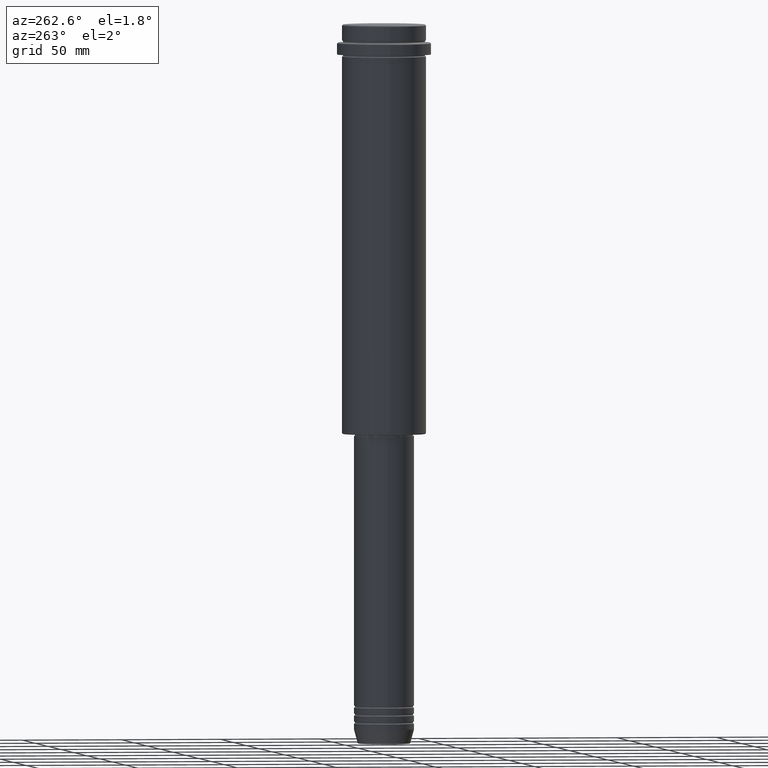
[diagram: clean part render]
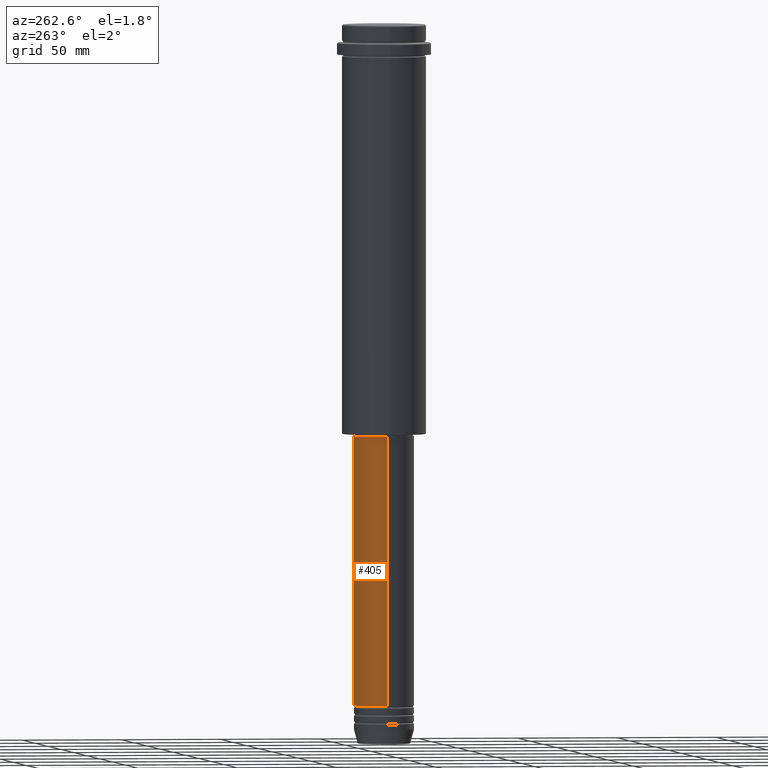
[diagram: same view with one face highlighted and labeled with its STEP entity id]
A machine part, auxiliary view. The second image highlights one B-rep face of the part: STEP entity #405.
In plain terms, the highlighted cylindrical surface (edge-blend (fillet) strip) has radius 15 mm, axis along (-0, -0, 1).
Its self-contained STEP definition (entity closure, byte-faithful):
#4 = AXIS2_PLACEMENT_3D ( 'NONE', #571, #886, #429 ) ;
#132 = EDGE_CURVE ( 'NONE', #289, #576, #618, .T. ) ;
#133 = CARTESIAN_POINT ( 'NONE',  ( -15.00000000000000000, 1.836970198721029589E-15, 0.000000000000000000 ) ) ;
#230 = LINE ( 'NONE', #133, #1149 ) ;
#235 = CARTESIAN_POINT ( 'NONE',  ( -15.00000000000000000, 1.836970198721029589E-15, -340.9999999999998863 ) ) ;
#254 = CARTESIAN_POINT ( 'NONE',  ( 15.00000000000000000, 0.000000000000000000, 0.000000000000000000 ) ) ;
#289 = VERTEX_POINT ( 'NONE', #602 ) ;
#314 = FACE_OUTER_BOUND ( 'NONE', #1371, .T. ) ;
#369 = DIRECTION ( 'NONE',  ( -0.000000000000000000, -0.000000000000000000, 1.000000000000000000 ) ) ;
#391 = CIRCLE ( 'NONE', #4, 15.00000000000000000 ) ;
#396 = VERTEX_POINT ( 'NONE', #1249 ) ;
#405 = ADVANCED_FACE ( 'NONE', ( #314 ), #508, .T. ) ;
#406 = DIRECTION ( 'NONE',  ( 1.000000000000000000, 0.000000000000000000, 0.000000000000000000 ) ) ;
#429 = DIRECTION ( 'NONE',  ( 1.000000000000000000, 0.000000000000000000, 0.000000000000000000 ) ) ;
#508 = CYLINDRICAL_SURFACE ( 'NONE', #681, 15.00000000000000000 ) ;
#553 = EDGE_CURVE ( 'NONE', #396, #1333, #391, .T. ) ;
#571 = CARTESIAN_POINT ( 'NONE',  ( 0.000000000000000000, 0.000000000000000000, -205.9999999999999716 ) ) ;
#576 = VERTEX_POINT ( 'NONE', #235 ) ;
#602 = CARTESIAN_POINT ( 'NONE',  ( 15.00000000000000000, 0.000000000000000000, -340.9999999999998863 ) ) ;
#613 = DIRECTION ( 'NONE',  ( -0.000000000000000000, -0.000000000000000000, 1.000000000000000000 ) ) ;
#618 = CIRCLE ( 'NONE', #1303, 15.00000000000000000 ) ;
#624 = DIRECTION ( 'NONE',  ( -0.000000000000000000, -0.000000000000000000, 1.000000000000000000 ) ) ;
#681 = AXIS2_PLACEMENT_3D ( 'NONE', #1383, #613, #1396 ) ;
#698 = LINE ( 'NONE', #254, #843 ) ;
#714 = ORIENTED_EDGE ( 'NONE', *, *, #1266, .T. ) ;
#771 = ORIENTED_EDGE ( 'NONE', *, *, #945, .F. ) ;
#808 = CARTESIAN_POINT ( 'NONE',  ( -15.00000000000000000, 1.836970198721029589E-15, -205.9999999999999716 ) ) ;
#843 = VECTOR ( 'NONE', #1144, 1000.000000000000000 ) ;
#886 = DIRECTION ( 'NONE',  ( -0.000000000000000000, -0.000000000000000000, 1.000000000000000000 ) ) ;
#919 = ORIENTED_EDGE ( 'NONE', *, *, #553, .F. ) ;
#945 = EDGE_CURVE ( 'NONE', #289, #396, #698, .T. ) ;
#1144 = DIRECTION ( 'NONE',  ( -0.000000000000000000, -0.000000000000000000, 1.000000000000000000 ) ) ;
#1149 = VECTOR ( 'NONE', #369, 1000.000000000000000 ) ;
#1249 = CARTESIAN_POINT ( 'NONE',  ( 15.00000000000000000, 0.000000000000000000, -205.9999999999999716 ) ) ;
#1265 = ORIENTED_EDGE ( 'NONE', *, *, #132, .T. ) ;
#1266 = EDGE_CURVE ( 'NONE', #576, #1333, #230, .T. ) ;
#1303 = AXIS2_PLACEMENT_3D ( 'NONE', #1379, #624, #406 ) ;
#1333 = VERTEX_POINT ( 'NONE', #808 ) ;
#1371 = EDGE_LOOP ( 'NONE', ( #1265, #714, #919, #771 ) ) ;
#1379 = CARTESIAN_POINT ( 'NONE',  ( 0.000000000000000000, 0.000000000000000000, -340.9999999999998863 ) ) ;
#1383 = CARTESIAN_POINT ( 'NONE',  ( 0.000000000000000000, 0.000000000000000000, 0.000000000000000000 ) ) ;
#1396 = DIRECTION ( 'NONE',  ( 1.000000000000000000, 0.000000000000000000, 0.000000000000000000 ) ) ;